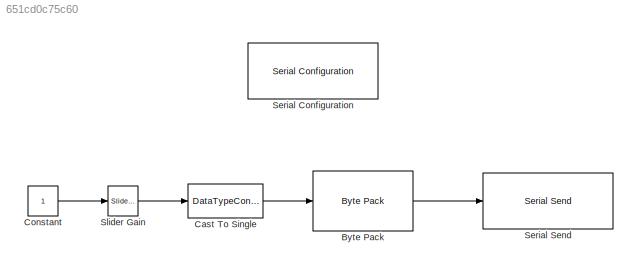
MODEL slx_651cd0c75c60
KIND model
CONFIG AbsTol = auto
CONFIG EnableMultiTasking = off
CONFIG FixedStep = auto
CONFIG MaxStep = auto
CONFIG MinStep = auto
CONFIG RelTol = 1e-3
CONFIG SampleTimeConstraint = Unconstrained
CONFIG SolverName = VariableStepAuto
CONFIG StartTime = 0.0
CONFIG StopTime = inf
BLOCK [Reference] Byte Pack  REF=svdutilitieslib/Byte Pack
  Ports = [1, 1]
  SourceBlock = svdutilitieslib/Byte Pack
  SourceProductBaseCode = ANDROID,ARDUINO,ML_ARDUINO,ECCORTEXA,ECCORTEXR,SC_BEAGLEBONE_BLUE,EC_FREEDOM_BOARD,EC_FRDM_K64F,INTEL_BLOCKSET,MICROBIT,NUCLEO,NVIDIA,PX4AUTOPILOTS,RASPPIIO,STMICRODIS,TIC2000,XILINX_BLOCKSET
  SourceType = Byte pack
BLOCK [DataTypeConversion] Cast To Single
  OutDataTypeStr = single
  RndMeth = Floor
  SaturateOnIntegerOverflow = off
BLOCK [Constant] Constant
  OutDataTypeStr = single
BLOCK [Reference] Serial Configuration  REF=instrumentseriallib/Serial Configuration
  Ports = []
  Priority = -200000
  SourceBlock = instrumentseriallib/Serial Configuration
  SourceProductBaseCode = IC
  SourceType = system.SerialConfiguration
BLOCK [Reference] Serial Send  REF=instrumentseriallib/Serial Send
  Ports = [1]
  Priority = 1
  SourceBlock = instrumentseriallib/Serial Send
  SourceProductBaseCode = IC
  SourceType = system.SerialSend
BLOCK [Reference] Slider Gain  REF=simulink/Math
Operations/Slider
Gain
  Ports = [1, 1]
  SourceBlock = simulink/Math\nOperations/Slider\nGain
  SourceProductBaseCode = SL
  SourceType = Slider Gain
LINE Byte Pack:1 -> Serial Send:1
LINE Cast To Single:1 -> Byte Pack:1
LINE Constant:1 -> Slider Gain:1
LINE Slider Gain:1 -> Cast To Single:1
